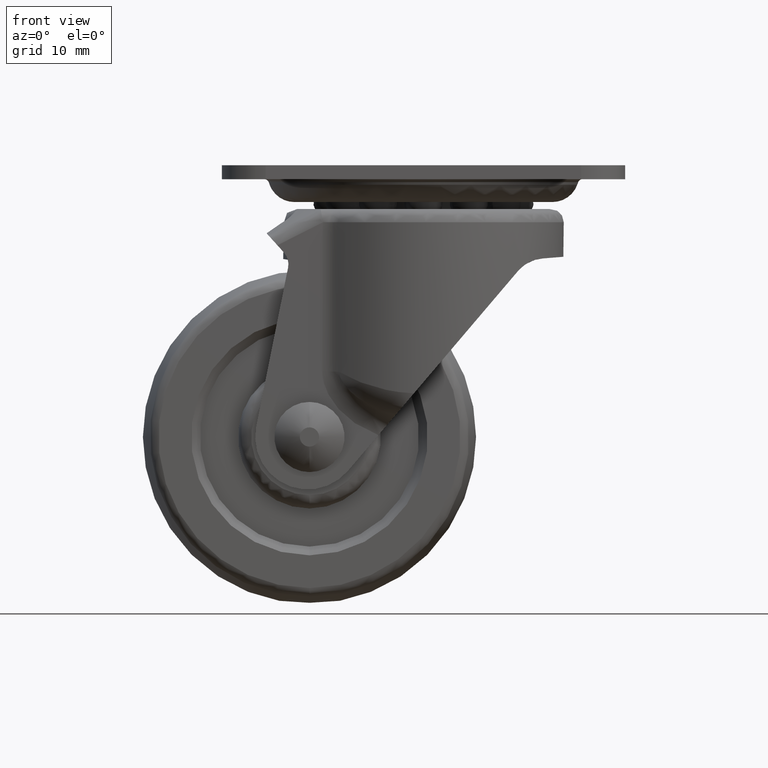
[diagram: clean part render]
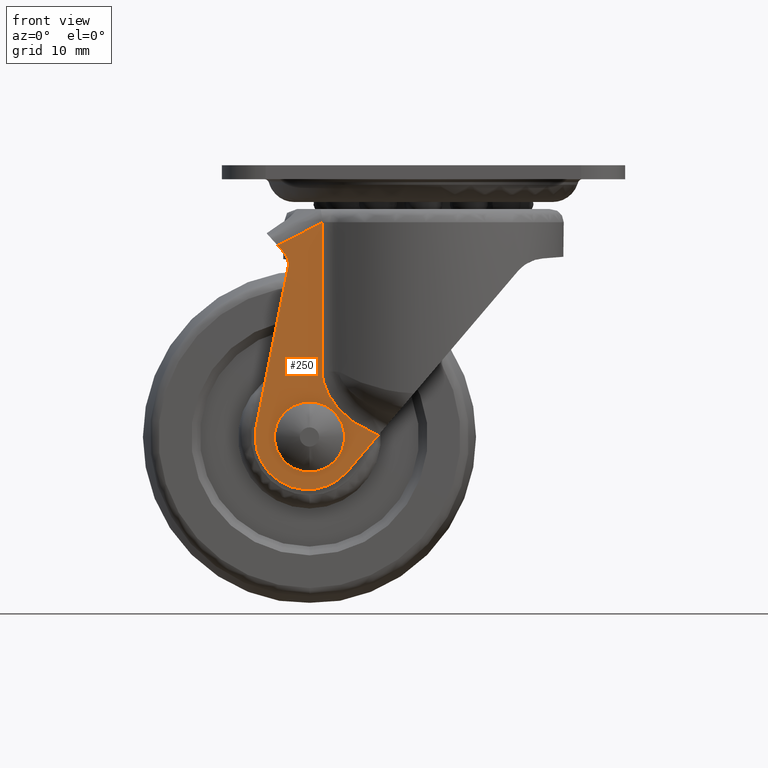
[diagram: same view with one face highlighted and labeled with its STEP entity id]
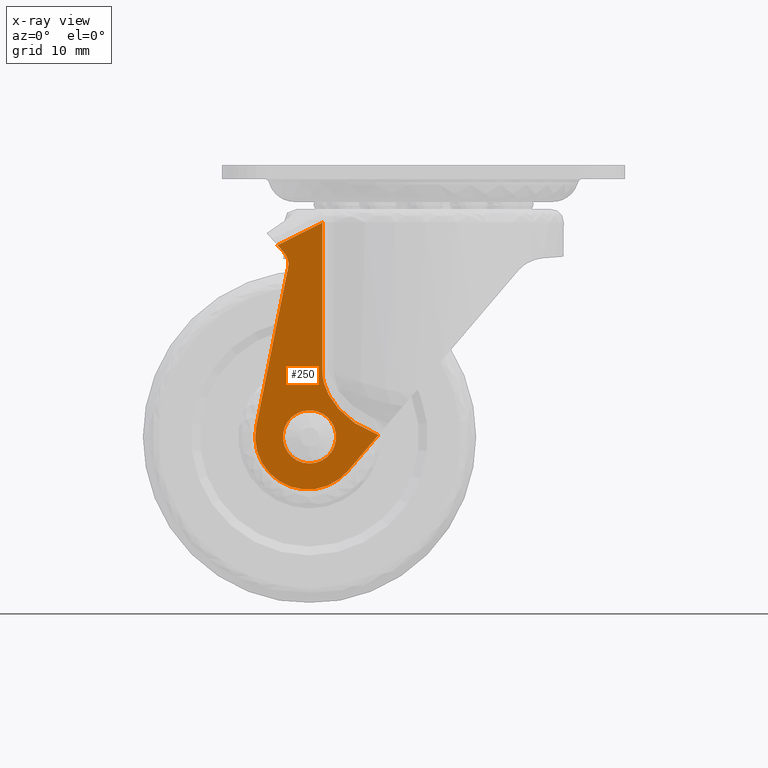
[diagram: x-ray of the same camera — body ghosted, the highlighted face saturated]
A machine part, front view. The second image highlights one B-rep face of the part: STEP entity #250.
The next image is the same camera in x-ray: the body ghosted, the highlighted face saturated — about 0% of this face is hidden behind the body in this view.
In plain terms, the highlighted planar face has unit normal (0, 1, 0).
Its self-contained STEP definition (entity closure, byte-faithful):
#250=ADVANCED_FACE('',(#746,#747),#745,.F.);
#745=PLANE('',#3486);
#746=FACE_OUTER_BOUND('',#3487,.T.);
#747=FACE_BOUND('',#3488,.T.);
#3483=CARTESIAN_POINT('',(-2.14824227893E+01,-1.20999980000E+01,-4.16115307680E+01));
#3484=DIRECTION('',(0.00000000000E+00,1.00000000000E+00,0.00000000000E+00));
#3485=DIRECTION('',(0.00000000000E+00,0.00000000000E+00,1.00000000000E+00));
#3486=AXIS2_PLACEMENT_3D('',#3483,#3484,#3485);
#3487=EDGE_LOOP('',(#5816,#5817,#5818,#5819,#5820,#5821,#5822,#5823));
#3488=EDGE_LOOP('',(#5824,#5825));
#5816=ORIENTED_EDGE('',*,*,#6981,.T.);
#5817=ORIENTED_EDGE('',*,*,#6982,.T.);
#5818=ORIENTED_EDGE('',*,*,#6983,.F.);
#5819=ORIENTED_EDGE('',*,*,#6984,.T.);
#5820=ORIENTED_EDGE('',*,*,#6985,.F.);
#5821=ORIENTED_EDGE('',*,*,#6986,.F.);
#5822=ORIENTED_EDGE('',*,*,#6976,.T.);
#5823=ORIENTED_EDGE('',*,*,#6980,.T.);
#5824=ORIENTED_EDGE('',*,*,#6987,.F.);
#5825=ORIENTED_EDGE('',*,*,#6988,.F.);
#6976=EDGE_CURVE('',#8334,#8327,#8335,.T.);
#6980=EDGE_CURVE('',#8327,#8354,#8361,.T.);
#6981=EDGE_CURVE('',#8354,#8367,#8368,.T.);
#6982=EDGE_CURVE('',#8367,#8374,#8375,.T.);
#6983=EDGE_CURVE('',#8381,#8374,#8382,.T.);
#6984=EDGE_CURVE('',#8381,#8388,#8389,.T.);
#6985=EDGE_CURVE('',#8395,#8388,#8396,.T.);
#6986=EDGE_CURVE('',#8334,#8395,#8402,.T.);
#6987=EDGE_CURVE('',#8408,#8409,#8410,.T.);
#6988=EDGE_CURVE('',#8409,#8408,#8416,.T.);
#8327=VERTEX_POINT('',#12242);
#8334=VERTEX_POINT('',#12257);
#8335=LINE('',#12258,#12259);
#8354=VERTEX_POINT('',#12281);
#8361=(BOUNDED_CURVE() B_SPLINE_CURVE(3,(#12286,#12287,#12288,#12289,#12290,#12291,#12292,#12293,#12294,#12295,#12296,#12297,#12298,#12299,#12300,#12301),.UNSPECIFIED.,.F.,.F.) B_SPLINE_CURVE_WITH_KNOTS((4,2,2,2,2,2,2,4),(1.78811203067E-17,2.55677629269E-03,3.83516443903E-03,5.11355258538E-03,6.39194073172E-03,7.67032887807E-03,8.94871702441E-03,1.02271051708E-02),.UNSPECIFIED.) CURVE() GEOMETRIC_REPRESENTATION_ITEM() RATIONAL_B_SPLINE_CURVE((1.00000000000E+00,1.00000000000E+00,1.00000000000E+00,1.00000000000E+00,1.00000000000E+00,1.00000000000E+00,1.00000000000E+00,1.00000000000E+00,1.00000000000E+00,1.00000000000E+00,1.00000000000E+00,1.00000000000E+00,1.00000000000E+00,1.00000000000E+00,1.00000000000E+00,1.00000000000E+00)) REPRESENTATION_ITEM('') );
#8367=VERTEX_POINT('',#12302);
#8368=LINE('',#12303,#12304);
#8374=VERTEX_POINT('',#12306);
#8375=(BOUNDED_CURVE() B_SPLINE_CURVE(3,(#12307,#12308,#12309,#12310),.UNSPECIFIED.,.F.,.F.) B_SPLINE_CURVE_WITH_KNOTS((4,4),(0.00000000000E+00,5.73492782293E-03),.UNSPECIFIED.) CURVE() GEOMETRIC_REPRESENTATION_ITEM() RATIONAL_B_SPLINE_CURVE((1.00000000000E+00,1.00000000000E+00,1.00000000000E+00,1.00000000000E+00)) REPRESENTATION_ITEM('') );
#8381=VERTEX_POINT('',#12311);
#8382=LINE('',#12312,#12313);
#8388=VERTEX_POINT('',#12315);
#8389=CIRCLE('',#12319,2.00000000000E+00);
#8395=VERTEX_POINT('',#12320);
#8396=LINE('',#12321,#12322);
#8402=CIRCLE('',#12327,6.00000089826E+00);
#8408=VERTEX_POINT('',#12328);
#8409=VERTEX_POINT('',#12329);
#8410=CIRCLE('',#12333,3.03000000000E+00);
#8416=CIRCLE('',#12337,3.03000000000E+00);
#12242=CARTESIAN_POINT('',(-5.14043079300E+00,-1.20999980000E+01,-3.07861521007E+01));
#12257=CARTESIAN_POINT('',(-8.63010000000E+00,-1.20999980000E+01,-3.48879320000E+01));
#12258=CARTESIAN_POINT('',(-8.63010000000E+00,-1.20999980000E+01,-3.48879320000E+01));
#12259=VECTOR('',#12260,5.38538666358E+00);
#12260=DIRECTION('',(6.47988607875E-01,0.00000000000E+00,7.61650027285E-01));
#12281=CARTESIAN_POINT('',(-1.15321316503E+01,-1.20999980000E+01,-2.35341152105E+01));
#12286=CARTESIAN_POINT('',(-5.14043079300E+00,-1.20999980000E+01,-3.07861521007E+01));
#12287=CARTESIAN_POINT('',(-5.94522297175E+00,-1.20999980000E+01,-3.04903983239E+01));
#12288=CARTESIAN_POINT('',(-6.71347600979E+00,-1.20999980000E+01,-3.01212453666E+01));
#12289=CARTESIAN_POINT('',(-7.80307557570E+00,-1.20999980000E+01,-2.94414045932E+01));
#12290=CARTESIAN_POINT('',(-8.15377528321E+00,-1.20999980000E+01,-2.91945076896E+01));
#12291=CARTESIAN_POINT('',(-8.81977298239E+00,-1.20999980000E+01,-2.86627758902E+01));
#12292=CARTESIAN_POINT('',(-9.13635831036E+00,-1.20999980000E+01,-2.83772365373E+01));
#12293=CARTESIAN_POINT('',(-9.73225921584E+00,-1.20999980000E+01,-2.77614858401E+01));
#12294=CARTESIAN_POINT('',(-1.00082701337E+01,-1.20999980000E+01,-2.74342376938E+01));
#12295=CARTESIAN_POINT('',(-1.05027102998E+01,-1.20999980000E+01,-2.67482495291E+01));
#12296=CARTESIAN_POINT('',(-1.07227640852E+01,-1.20999980000E+01,-2.63881077355E+01));
#12297=CARTESIAN_POINT('',(-1.10980785385E+01,-1.20999980000E+01,-2.56269259115E+01));
#12298=CARTESIAN_POINT('',(-1.12544765287E+01,-1.20999980000E+01,-2.52207896693E+01));
#12299=CARTESIAN_POINT('',(-1.14702075932E+01,-1.20999980000E+01,-2.43930711178E+01));
#12300=CARTESIAN_POINT('',(-1.15321316503E+01,-1.20999980000E+01,-2.39668196755E+01));
#12301=CARTESIAN_POINT('',(-1.15321316503E+01,-1.20999980000E+01,-2.35341152105E+01));
#12302=CARTESIAN_POINT('',(-1.15321316503E+01,-1.20999980000E+01,-6.56112666717E+00));
#12303=CARTESIAN_POINT('',(-1.15321316503E+01,-1.20999980000E+01,-2.35341152105E+01));
#12304=VECTOR('',#12305,1.69729885433E+01);
#12305=DIRECTION('',(0.00000000000E+00,0.00000000000E+00,1.00000000000E+00));
#12306=CARTESIAN_POINT('',(-1.66577976525E+01,-1.20999980000E+01,-9.13346901758E+00));
#12307=CARTESIAN_POINT('',(-1.15321316503E+01,-1.20999980000E+01,-6.56112666717E+00));
#12308=CARTESIAN_POINT('',(-1.32669506808E+01,-1.20999980000E+01,-7.36624090604E+00));
#12309=CARTESIAN_POINT('',(-1.49695188872E+01,-1.20999980000E+01,-8.23561834554E+00));
#12310=CARTESIAN_POINT('',(-1.66577976525E+01,-1.20999980000E+01,-9.13346901758E+00));
#12311=CARTESIAN_POINT('',(-1.59182185222E+01,-1.20999980000E+01,-9.95294993724E+00));
#12312=CARTESIAN_POINT('',(-1.59182185222E+01,-1.20999980000E+01,-9.95294993724E+00));
#12313=VECTOR('',#12314,1.10386877287E+00);
#12314=DIRECTION('',(-6.69988270819E-01,0.00000000000E+00,7.42371683839E-01));
#12315=CARTESIAN_POINT('',(-1.54420933300E+01,-1.20999980000E+01,-1.16866198761E+01));
#12316=CARTESIAN_POINT('',(-1.74029618899E+01,-1.20999980000E+01,-1.12929264789E+01));
#12317=DIRECTION('',(0.00000000000E+00,1.00000000000E+00,-0.00000000000E+00));
#12318=DIRECTION('',(-0.00000000000E+00,-0.00000000000E+00,-1.00000000000E+00));
#12319=AXIS2_PLACEMENT_3D('',#12316,#12317,#12318);
#12320=CARTESIAN_POINT('',(-1.90826060000E+01,-1.20999980000E+01,-2.98189200000E+01));
#12321=CARTESIAN_POINT('',(-1.90826060000E+01,-1.20999980000E+01,-2.98189200000E+01));
#12322=VECTOR('',#12323,1.84941515156E+01);
#12323=DIRECTION('',(1.96846698638E-01,0.00000000000E+00,9.80434279916E-01));
#12324=CARTESIAN_POINT('',(-1.32000002865E+01,-1.20999980000E+01,-3.09999991108E+01));
#12325=DIRECTION('',(0.00000000000E+00,1.00000000000E+00,0.00000000000E+00));
#12326=DIRECTION('',(7.61649933716E-01,-0.00000000000E+00,-6.47988717857E-01));
#12327=AXIS2_PLACEMENT_3D('',#12324,#12325,#12326);
#12328=CARTESIAN_POINT('',(-1.29999990000E+01,-1.20999980000E+01,-3.40300000000E+01));
#12329=CARTESIAN_POINT('',(-1.29999990000E+01,-1.20999980000E+01,-2.79700000000E+01));
#12330=CARTESIAN_POINT('',(-1.29999990000E+01,-1.20999980000E+01,-3.10000000000E+01));
#12331=DIRECTION('',(-0.00000000000E+00,-1.00000000000E+00,0.00000000000E+00));
#12332=DIRECTION('',(-1.22460635382E-16,0.00000000000E+00,1.00000000000E+00));
#12333=AXIS2_PLACEMENT_3D('',#12330,#12331,#12332);
#12334=CARTESIAN_POINT('',(-1.29999990000E+01,-1.20999980000E+01,-3.10000000000E+01));
#12335=DIRECTION('',(-0.00000000000E+00,-1.00000000000E+00,0.00000000000E+00));
#12336=DIRECTION('',(-1.22460635382E-16,0.00000000000E+00,1.00000000000E+00));
#12337=AXIS2_PLACEMENT_3D('',#12334,#12335,#12336);